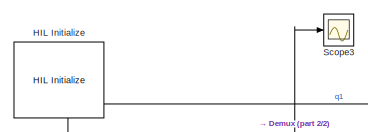
[diagram: root canvas - part 1/2, top left region]
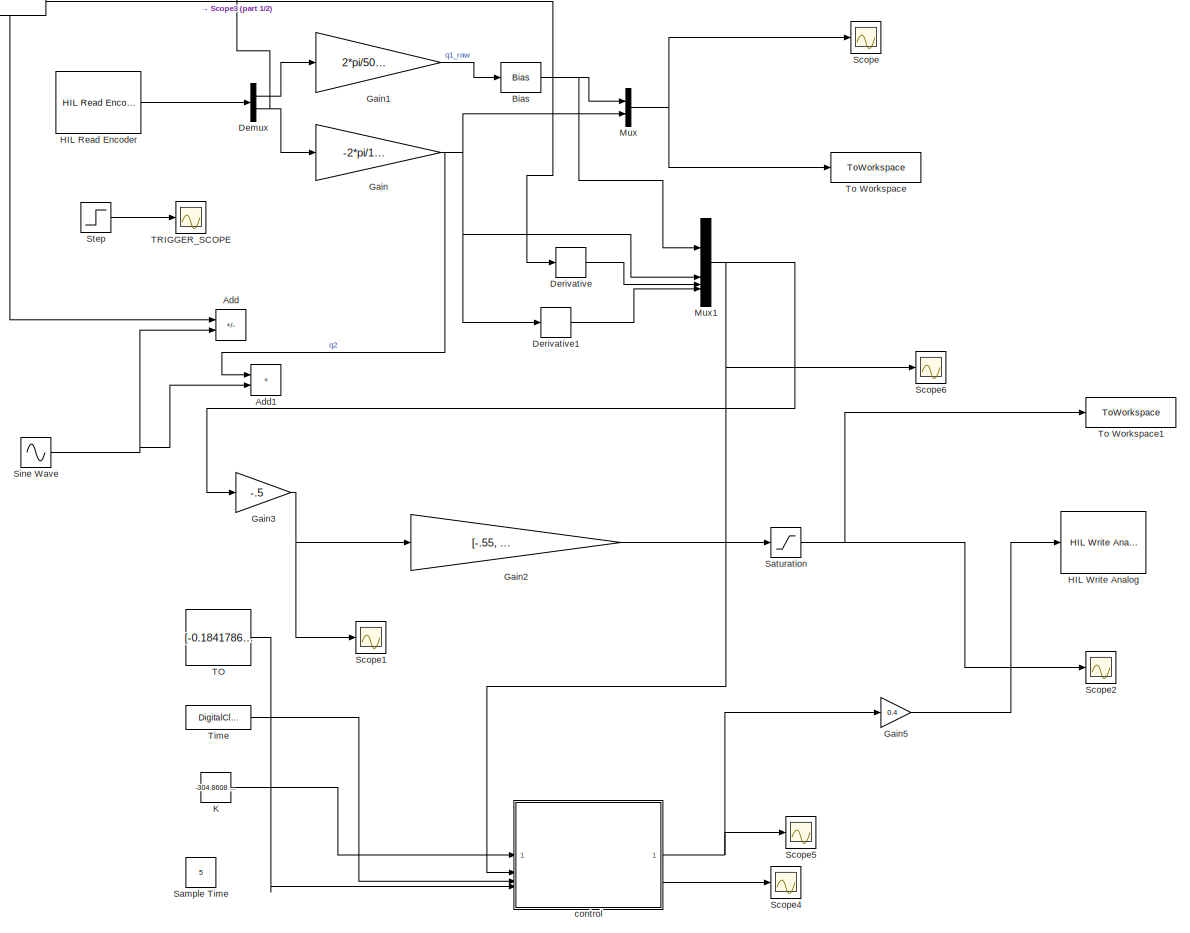
[diagram: root canvas - part 2/2, most of the canvas]
MODEL slx_63d0daa6ce9a
KIND model
CONFIG AbsTol = auto
CONFIG EnableMultiTasking = on
CONFIG FixedStep = 0.001
CONFIG MaxStep = auto
CONFIG MinStep = auto
CONFIG RelTol = 1e-3
CONFIG SampleTimeConstraint = Unconstrained
CONFIG SolverName = FixedStepDiscrete
CONFIG StartTime = 0.0
CONFIG StopTime = 10
BLOCK [Sum] Add
  IconShape = rectangular
  Inputs = +-
BLOCK [Sum] Add1
  IconShape = rectangular
BLOCK [Bias] Bias
  Bias = -pi/2
  SaturateOnIntegerOverflow = off
BLOCK [Demux] Demux
  Outputs = 2
BLOCK [Derivative] Derivative
  CoefficientInTFapproximation = 0.05
BLOCK [Derivative] Derivative1
  CoefficientInTFapproximation = 0.05
BLOCK [Gain] Gain
  Gain = -2*pi/10000
BLOCK [Gain] Gain1
  Gain = 2*pi/5000
BLOCK [Gain] Gain2
  Gain = [-.55, -.67, .223*0, -.07*0]
  Multiplication = Matrix(K*u)
BLOCK [Gain] Gain3
  Gain = -.5
BLOCK [Gain] Gain5
  Gain = 0.4
BLOCK [Reference] HIL Initialize  REF=quarc_library/Data Acquisition/Generic/Configuration/HIL Initialize
  AttributesFormatString = %<object_name> (%<board_type>-%<board_number>)
  SourceBlock = quarc_library/Data Acquisition/Generic/Configuration/HIL Initialize
  SourceProductName = QUARC Targets
  SourceType = HIL Initialize
  UserDataPersistent = on
BLOCK [Reference] HIL Read Encoder  REF=quarc_library/Data Acquisition/Generic/Immediate I//O/HIL Read Encoder
  AttributesFormatString = (%<object_name>)
  SourceBlock = quarc_library/Data Acquisition/Generic/Immediate I//O/HIL Read Encoder
  SourceProductName = QUARC Targets
  SourceType = HIL Read Encoder
  UserDataPersistent = on
BLOCK [Reference] HIL Write Analog  REF=quarc_library/Data Acquisition/Generic/Immediate I//O/HIL Write Analog
  AttributesFormatString = (%<object_name>)
  SourceBlock = quarc_library/Data Acquisition/Generic/Immediate I//O/HIL Write Analog
  SourceProductName = QUARC Targets
  SourceType = HIL Write Analog
  UserDataPersistent = on
BLOCK [Constant] K
  Value = -304.8608     -290.7186     -49.19084     -38.18231
BLOCK [Mux] Mux
  DisplayOption = bar
  Inputs = 2
BLOCK [Mux] Mux1
  DisplayOption = bar
BLOCK [Constant] Sample Time
  Value = 5
BLOCK [Saturate] Saturation
  Commented = on
  LowerLimit = -2
  UpperLimit = 2
BLOCK [Scope] Scope
  Floating = off
  NumInputPorts = 1
  ScopeSpecificationString = Simulink.scopes.TimeScopeBlockCfg('CurrentConfiguration', extmgr.ConfigurationSet(extmgr.Configuration('Core','General UI',true),extmgr.Configuration('Core','Source UI',true),extmgr.Configuration('Sources','WiredSimulink',true,'DataLogging',true,'DataLoggingVariableName','CartPos','DataLoggingSaveFormat','Array'),extmgr.Configuration('Visuals','Time Domain',true,'SerializedDisplays',{struct('MinYL...<+1515ch>
BLOCK [Scope] Scope1
  Floating = off
  NumInputPorts = 1
  ScopeSpecificationString = Simulink.scopes.TimeScopeBlockCfg('CurrentConfiguration', extmgr.ConfigurationSet(extmgr.Configuration('Core','General UI',true),extmgr.Configuration('Core','Source UI',true),extmgr.Configuration('Sources','WiredSimulink',true,'DataLoggingVariableName','ScopeData1'),extmgr.Configuration('Visuals','Time Domain',true,'SerializedDisplays',{struct('MinYLimReal','-6.9115','MaxYLimReal','18.22124','YLab...<+1520ch>
BLOCK [Scope] Scope2
  Floating = off
  NumInputPorts = 1
  ScopeSpecificationString = Simulink.scopes.TimeScopeBlockCfg('CurrentConfiguration', extmgr.ConfigurationSet(extmgr.Configuration('Core','General UI',true),extmgr.Configuration('Core','Source UI',true),extmgr.Configuration('Sources','WiredSimulink',true,'DataLoggingVariableName','ScopeData1'),extmgr.Configuration('Visuals','Time Domain',true,'SerializedDisplays',{struct('MinYLimReal','-1.00000','MaxYLimReal','1.00000','YLab...<+1399ch>
BLOCK [Scope] Scope3
  Floating = off
  NumInputPorts = 1
  ScopeSpecificationString = Simulink.scopes.TimeScopeBlockCfg('CurrentConfiguration', extmgr.ConfigurationSet(extmgr.Configuration('Core','General UI',true),extmgr.Configuration('Core','Source UI',true),extmgr.Configuration('Sources','WiredSimulink',true,'DataLoggingVariableName','ScopeData2'),extmgr.Configuration('Visuals','Time Domain',true,'SerializedDisplays',{struct('MinYLimReal','-475.75','MaxYLimReal','3911.75','YLabe...<+1394ch>
BLOCK [Scope] Scope4
  Floating = off
  NumInputPorts = 1
  ScopeSpecificationString = Simulink.scopes.TimeScopeBlockCfg('CurrentConfiguration', extmgr.ConfigurationSet(extmgr.Configuration('Core','General UI',true),extmgr.Configuration('Core','Source UI',true),extmgr.Configuration('Sources','WiredSimulink',true,'DataLoggingVariableName','ScopeData3'),extmgr.Configuration('Visuals','Time Domain',true,'SerializedDisplays',{struct('MinYLimReal','-3.92699','MaxYLimReal','3.92699','YLab...<+1421ch>
BLOCK [Scope] Scope5
  Floating = off
  NumInputPorts = 1
  ScopeSpecificationString = Simulink.scopes.TimeScopeBlockCfg('CurrentConfiguration', extmgr.ConfigurationSet(extmgr.Configuration('Core','General UI',true),extmgr.Configuration('Core','Source UI',true),extmgr.Configuration('Sources','WiredSimulink',true,'DataLoggingVariableName','ScopeData4'),extmgr.Configuration('Visuals','Time Domain',true,'SerializedDisplays',{struct('MinYLimReal','-3.75','MaxYLimReal','3.75','YLabelReal...<+1379ch>
BLOCK [Scope] Scope6
  Floating = off
  NumInputPorts = 1
  ScopeSpecificationString = Simulink.scopes.TimeScopeBlockCfg('CurrentConfiguration', extmgr.ConfigurationSet(extmgr.Configuration('Core','General UI',true),extmgr.Configuration('Core','Source UI',true),extmgr.Configuration('Sources','WiredSimulink',true,'DataLogging',true,'DataLoggingVariableName','ScopeData1','DataLoggingSaveFormat','Array'),extmgr.Configuration('Visuals','Time Domain',true,'SerializedDisplays',{struct('Mi...<+1614ch>
BLOCK [Sin] Sine Wave
  Amplitude = 2
  Bias = .05
  Frequency = 5
  SampleTime = 0.001
BLOCK [Step] Step
  SampleTime = 0
  Time = 0.001
BLOCK [Constant] TO
  Value = [-0.18417868194945 -0.226841825144858 -0.290388060159798 -0.314153466552654 -0.308261482997459 -0.286417490775861 -0.262301789640817 -0.246233380730292 -0.244248621928876 -0.259477215448114 -0.293934669646237 -0.348894125876957 -0.423403657565455 -0.511677310377363 -0.601627977133467 -0.676430918179053 -0.718422561822155 -0.712511019574875 -0.647970404116223 -0.519951509047282 -0.331896127027282 -...<+1536ch>
BLOCK [Scope] TRIGGER_SCOPE
  ExtModeLoggingTrig = on
  Floating = off
  NumInputPorts = 1
  ScopeSpecificationString = Simulink.scopes.TimeScopeBlockCfg('CurrentConfiguration', extmgr.ConfigurationSet(extmgr.Configuration('Core','General UI',true),extmgr.Configuration('Core','Source UI',true),extmgr.Configuration('Sources','WiredSimulink',true,'DataLoggingVariableName','TriggerData','DataLoggingSaveFormat','Array','DataLoggingDecimation','1','DataLogging',true),extmgr.Configuration('Visuals','Time Domain',true,'Se...<+1587ch>
BLOCK [DigitalClock] Time
  SampleTime = T
BLOCK [ToWorkspace] To Workspace
  MaxDataPoints = inf
  SampleTime = -1
  SaveFormat = Structure With Time
  VariableName = PendEnc
BLOCK [ToWorkspace] To Workspace1
  MaxDataPoints = inf
  SampleTime = -1
  SaveFormat = Structure With Time
  VariableName = tau
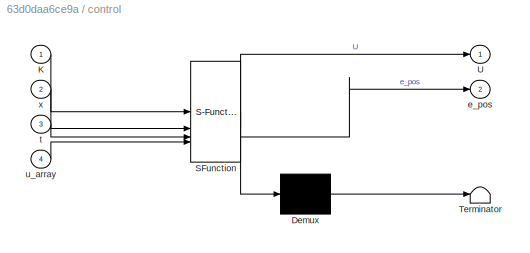
BLOCK [SubSystem] control
  ErrorFcn = Stateflow.Translate.translate
  LibrarySourceBlock = simulink/User-Defined\nFunctions/MATLAB Function
  PermitHierarchicalResolution = ExplicitOnly
  SFBlockType = MATLAB Function
  TreatAsAtomicUnit = on
BLOCK [Demux] control/ Demux 
  Outputs = 1
BLOCK [S-Function] control/ SFunction 
  EnableBusSupport = on
  FunctionName = sf_sfun
  PortCounts = [4 3]
  SFcnIsStateOwnerBlock = off
  SFunctionDeploymentMode = off
  Tag = Stateflow S-Function 1
BLOCK [Terminator] control/ Terminator 
BLOCK [Inport] control/K
BLOCK [Outport] control/U
BLOCK [Outport] control/e_pos
  Port = 2
BLOCK [Inport] control/t
  Port = 3
BLOCK [Inport] control/u_array
  Port = 4
BLOCK [Inport] control/x
  Port = 2
NET Bias:1 -> Add:1, Derivative:1, Mux1:1, Mux:1
LINE Demux:1 -> Gain1:1
NET Demux:2 -> Gain:1, Scope3:1
LINE Derivative1:1 -> Mux1:4
LINE Derivative:1 -> Mux1:3
LINE Gain1:1 -> Bias:1
LINE Gain2:1 -> Saturation:1
NET Gain3:1 -> Gain2:1, Scope1:1
LINE Gain5:1 -> HIL Write Analog:1
NET Gain:1 -> Add1:1, Derivative1:1, Mux1:2, Mux:2
LINE HIL Read Encoder:1 -> Demux:1
LINE K:1 -> control:1
NET Mux1:1 -> Gain3:1, Scope6:1, control:2
NET Mux:1 -> Scope:1, To Workspace:1
NET Saturation:1 -> Scope2:1, To Workspace1:1
NET Sine Wave:1 -> Add1:2, Add:2
LINE Step:1 -> TRIGGER_SCOPE:1
LINE TO:1 -> control:4
LINE Time:1 -> control:3
NET control:1 -> Gain5:1, Scope5:1
LINE control:2 -> Scope4:1
note: NET lines group one-source signal fan-out (src -> all destinations, sorted); 1:1 wires keep LINE
CHART control states=1 transitions=1
  STATE_LABEL 'eML_blk_kernel()'
  STATE_LABEL "SCRIPT:\nfunction [U, e_pos] = control(K, x, t, u_array)\n    % x(1) = x(1)-pi/2;\n    \n    xF=[pi/2;0;0;0];u_max=3;\n    persistent lqr_engaged\n    % Reset the memory if it's the start of simulation (t=0)\n    % or if the variable hasn't been created yet.\n    if isempty(lqr_engaged) || t == 0\n        lqr_engaged = false;\n    end\n\n    x(3:4) = vel_estimator(x(1:2));\n    % 1. Calculate Error\n    error =...<+2753ch>"
CHART  states=0 transitions=0
